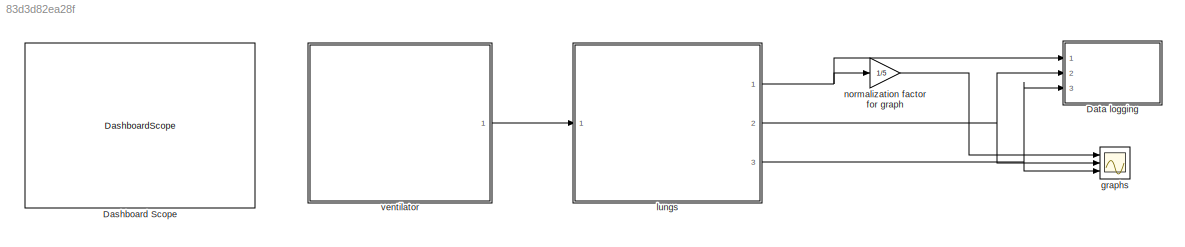
MODEL slx_83d3d82ea28f
KIND model
CONFIG AbsTol = auto
CONFIG EnableMultiTasking = off
CONFIG FixedStep = auto
CONFIG MaxStep = 0.01
CONFIG MinStep = auto
CONFIG RelTol = 1e-3
CONFIG SampleTimeConstraint = Unconstrained
CONFIG SolverName = odeN
CONFIG StartTime = 0.0
CONFIG StopTime = 10.0
WORKSPACE source: external: MATLAB File  (data not in archive)
BLOCK [DashboardScope] Dashboard Scope
  LegendPosition = Hide
  Ymax = 10
  Ymin = -10
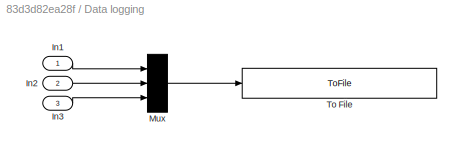
BLOCK [SubSystem] Data logging
  Ports = [3]
  RequestExecContextInheritance = off
BLOCK [Inport] Data logging/In1
BLOCK [Inport] Data logging/In2
  Port = 2
BLOCK [Inport] Data logging/In3
  Port = 3
BLOCK [Mux] Data logging/Mux
  DisplayOption = bar
  Inputs = 3
  Ports = [3, 1]
BLOCK [ToFile] Data logging/To File
  Filename = data_log/data_square_wave_rise_20_Tinsp_40_PEEP_5_Paw_25_freq_18.mat
  LoadFcn = set_param(gcb,'Filename',out.name_output);
  MatrixName = mechanics_lung
  Ports = [1]
  SaveFormat = Timeseries
BLOCK [Scope] graphs
  Floating = off
  NumInputPorts = 3
  Ports = [3]
  ScopeSpecificationString = Simulink.scopes.TimeScopeBlockCfg('CurrentConfiguration', extmgr.ConfigurationSet(extmgr.Configuration('Core','General UI',true),extmgr.Configuration('Core','Source UI',true),extmgr.Configuration('Sources','WiredSimulink',true,'DataLoggingVariableName','ScopeData3'),extmgr.Configuration('Visuals','Time Domain',true,'SerializedDisplays',{struct('MinYLimReal','-25.77672','MaxYLimReal','10.20377','YL...<+1657ch>
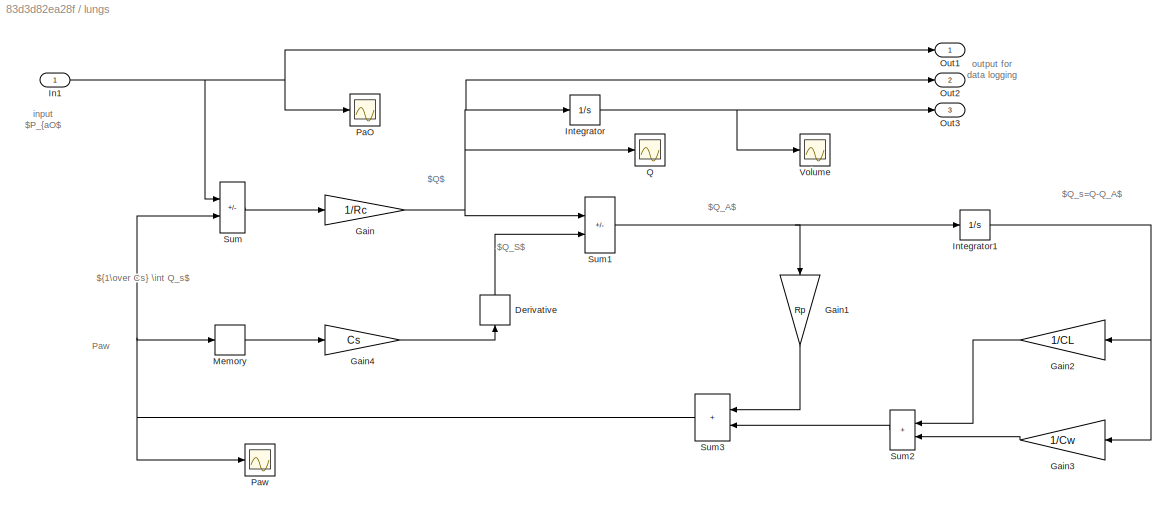
BLOCK [SubSystem] lungs
  Ports = [1, 3]
  RequestExecContextInheritance = off
BLOCK [Derivative] lungs/Derivative
  NameLocation = right
BLOCK [Gain] lungs/Gain
  Gain = 1/Rc
BLOCK [Gain] lungs/Gain1
  Gain = Rp
  NameLocation = right
BLOCK [Gain] lungs/Gain2
  Gain = 1/CL
BLOCK [Gain] lungs/Gain3
  Gain = 1/Cw
BLOCK [Gain] lungs/Gain4
  Gain = Cs
BLOCK [Inport] lungs/In1
BLOCK [Integrator] lungs/Integrator
  Ports = [1, 1]
BLOCK [Integrator] lungs/Integrator1
  Ports = [1, 1]
BLOCK [Memory] lungs/Memory
BLOCK [Outport] lungs/Out1
BLOCK [Outport] lungs/Out2
  Port = 2
BLOCK [Outport] lungs/Out3
  Port = 3
BLOCK [Scope] lungs/PaO
  Floating = off
  NumInputPorts = 1
  Ports = [1]
  ScopeSpecificationString = Simulink.scopes.TimeScopeBlockCfg('CurrentConfiguration', extmgr.ConfigurationSet(extmgr.Configuration('Core','General UI',true),extmgr.Configuration('Core','Source UI',true),extmgr.Configuration('Sources','WiredSimulink',true,'DataLoggingVariableName','ScopeData2'),extmgr.Configuration('Visuals','Time Domain',true,'SerializedDisplays',{struct('MinYLimReal','-6.25','MaxYLimReal','6.25','YLabelReal...<+1344ch>
BLOCK [Scope] lungs/Paw
  Floating = off
  NumInputPorts = 1
  Ports = [1]
  ScopeSpecificationString = Simulink.scopes.TimeScopeBlockCfg('CurrentConfiguration', extmgr.ConfigurationSet(extmgr.Configuration('Core','General UI',true),extmgr.Configuration('Core','Source UI',true),extmgr.Configuration('Sources','WiredSimulink',true,'DataLoggingVariableName','ScopeData1'),extmgr.Configuration('Visuals','Time Domain',true,'SerializedDisplays',{struct('MinYLimReal','-1.24427','MaxYLimReal','27.86513','YLa...<+1367ch>
BLOCK [Scope] lungs/Q
  Floating = off
  NumInputPorts = 1
  Ports = [1]
  ScopeSpecificationString = Simulink.scopes.TimeScopeBlockCfg('CurrentConfiguration', extmgr.ConfigurationSet(extmgr.Configuration('Core','General UI',true),extmgr.Configuration('Core','Source UI',true),extmgr.Configuration('Sources','WiredSimulink',true),extmgr.Configuration('Visuals','Time Domain',true,'SerializedDisplays',{struct('MinYLimReal','-1283.46752','MaxYLimReal','153.94544','YLabelReal','','MinYLimMag','  0.00000...<+1344ch>
BLOCK [Sum] lungs/Sum
  IconShape = rectangular
  Inputs = +-
  Ports = [2, 1]
BLOCK [Sum] lungs/Sum1
  IconShape = rectangular
  Inputs = +-
  Ports = [2, 1]
BLOCK [Sum] lungs/Sum2
  IconShape = rectangular
  Ports = [2, 1]
BLOCK [Sum] lungs/Sum3
  IconShape = rectangular
  Ports = [2, 1]
BLOCK [Scope] lungs/Volume
  Floating = off
  NumInputPorts = 1
  Ports = [1]
  ScopeSpecificationString = Simulink.scopes.TimeScopeBlockCfg('CurrentConfiguration', extmgr.ConfigurationSet(extmgr.Configuration('Core','General UI',true),extmgr.Configuration('Core','Source UI',true),extmgr.Configuration('Sources','WiredSimulink',true,'DataLoggingVariableName','ScopeData1'),extmgr.Configuration('Visuals','Time Domain',true,'SerializedDisplays',{struct('MinYLimReal','-0.57143','MaxYLimReal','0.57424','YLab...<+1369ch>
BLOCK [Gain] normalization factor for graph
  Gain = 1/5
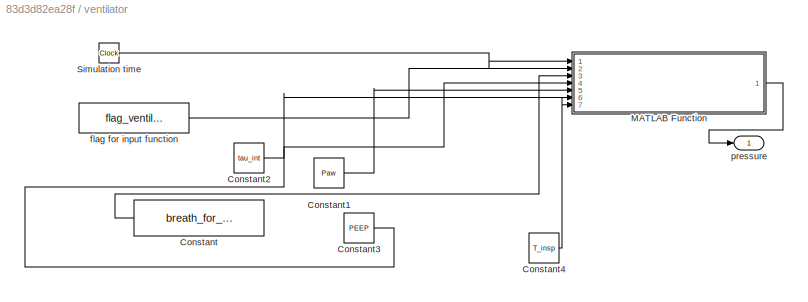
BLOCK [SubSystem] ventilator
  Ports = [0, 1]
  RequestExecContextInheritance = off
BLOCK [Constant] ventilator/Constant
  NameLocation = top
  Value = breath_for_minute
BLOCK [Constant] ventilator/Constant1
  Value = Paw
BLOCK [Constant] ventilator/Constant2
  Value = tau_int
BLOCK [Constant] ventilator/Constant3
  Value = PEEP
BLOCK [Constant] ventilator/Constant4
  Value = T_insp
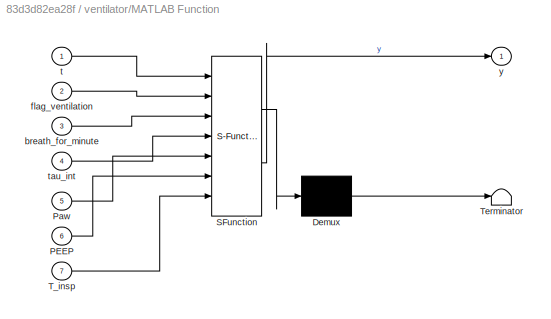
BLOCK [SubSystem] ventilator/MATLAB Function
  ErrorFcn = Stateflow.Translate.translate
  PermitHierarchicalResolution = ExplicitOnly
  Ports = [7, 1]
  RequestExecContextInheritance = off
  SFBlockType = MATLAB Function
  TreatAsAtomicUnit = on
BLOCK [Demux] ventilator/MATLAB Function/ Demux 
  Outputs = 1
  Ports = [1, 1]
BLOCK [S-Function] ventilator/MATLAB Function/ SFunction 
  EnableBusSupport = on
  FunctionName = sf_sfun
  PortCounts = [7 2]
  Ports = [7, 2]
  SFcnIsStateOwnerBlock = off
  SFunctionDeploymentMode = off
  Tag = Stateflow S-Function 2
BLOCK [Terminator] ventilator/MATLAB Function/ Terminator 
BLOCK [Inport] ventilator/MATLAB Function/PEEP
  Port = 6
BLOCK [Inport] ventilator/MATLAB Function/Paw
  Port = 5
BLOCK [Inport] ventilator/MATLAB Function/T_insp
  Port = 7
BLOCK [Inport] ventilator/MATLAB Function/breath_for_minute
  Port = 3
BLOCK [Inport] ventilator/MATLAB Function/flag_ventilation
  Port = 2
BLOCK [Inport] ventilator/MATLAB Function/t
BLOCK [Inport] ventilator/MATLAB Function/tau_int
  Port = 4
BLOCK [Outport] ventilator/MATLAB Function/y
BLOCK [Clock] ventilator/Simulation time
  DisplayTime = on
BLOCK [Constant] ventilator/flag for input function
  Value = flag_ventilation
BLOCK [Outport] ventilator/pressure
ANNOTATION lungs: input $P_{aO$
ANNOTATION lungs: $Q$
ANNOTATION lungs: $Q_A$
ANNOTATION lungs: $Q_S$
ANNOTATION lungs: $Q_s=Q-Q_A$
ANNOTATION lungs: ${1\over Cs} \int Q_s$
ANNOTATION lungs: Paw
ANNOTATION lungs: output for data logging
LINE Data logging/In1:1 -> Data logging/Mux:1
LINE Data logging/In2:1 -> Data logging/Mux:2
LINE Data logging/In3:1 -> Data logging/Mux:3
LINE Data logging/Mux:1 -> Data logging/To File:1
LINE lungs/Derivative:1 -> lungs/Sum1:2
LINE lungs/Gain1:1 -> lungs/Sum3:1
LINE lungs/Gain2:1 -> lungs/Sum2:1
LINE lungs/Gain3:1 -> lungs/Sum2:2
LINE lungs/Gain4:1 -> lungs/Derivative:1
NET lungs/Gain:1 -> lungs/Integrator:1, lungs/Out2:1, lungs/Q:1, lungs/Sum1:1
NET lungs/In1:1 -> lungs/Out1:1, lungs/PaO:1, lungs/Sum:1
NET lungs/Integrator1:1 -> lungs/Gain2:1, lungs/Gain3:1
NET lungs/Integrator:1 -> lungs/Out3:1, lungs/Volume:1
LINE lungs/Memory:1 -> lungs/Gain4:1
NET lungs/Sum1:1 -> lungs/Gain1:1, lungs/Integrator1:1
LINE lungs/Sum2:1 -> lungs/Sum3:2
NET lungs/Sum3:1 -> lungs/Memory:1, lungs/Paw:1, lungs/Sum:2
LINE lungs/Sum:1 -> lungs/Gain:1
NET lungs:1 -> Data logging:1, normalization factor for graph:1
NET lungs:2 -> Data logging:2, graphs:2
NET lungs:3 -> Data logging:3, graphs:3
LINE normalization factor for graph:1 -> graphs:1
LINE ventilator/Constant1:1 -> ventilator/MATLAB Function:5
LINE ventilator/Constant2:1 -> ventilator/MATLAB Function:4
LINE ventilator/Constant3:1 -> ventilator/MATLAB Function:6
LINE ventilator/Constant4:1 -> ventilator/MATLAB Function:7
LINE ventilator/Constant:1 -> ventilator/MATLAB Function:3
LINE ventilator/MATLAB Function:1 -> ventilator/pressure:1
LINE ventilator/Simulation time:1 -> ventilator/MATLAB Function:1
LINE ventilator/flag for input function:1 -> ventilator/MATLAB Function:2
LINE ventilator:1 -> lungs:1
note: NET lines group one-source signal fan-out (src -> all destinations, sorted); 1:1 wires keep LINE
CHART ventilator/MATLAB Function states=1 transitions=1
  STATE_LABEL 'eML_blk_kernel()'
  STATE_LABEL 'SCRIPT:\nfunction y = fcn(t,flag_ventilation,breath_for_minute,tau_int,Paw,PEEP,T_insp)\n\n% % % to avoid error use the `odeN` solver !\n\nf=breath_for_minute/60; % breathing frequence in Hz\n% pressure diffrence from maximus value and PEEP\nDeltaPressure=Paw-PEEP; \n\nA=0; % initialize output variable\n\nif flag_ventilation==1 % flag=1 for sine wave\n    % sine wave from Khoo Physiological Control Sistem\n   ...<+1408ch>'
CHART  states=0 transitions=0
